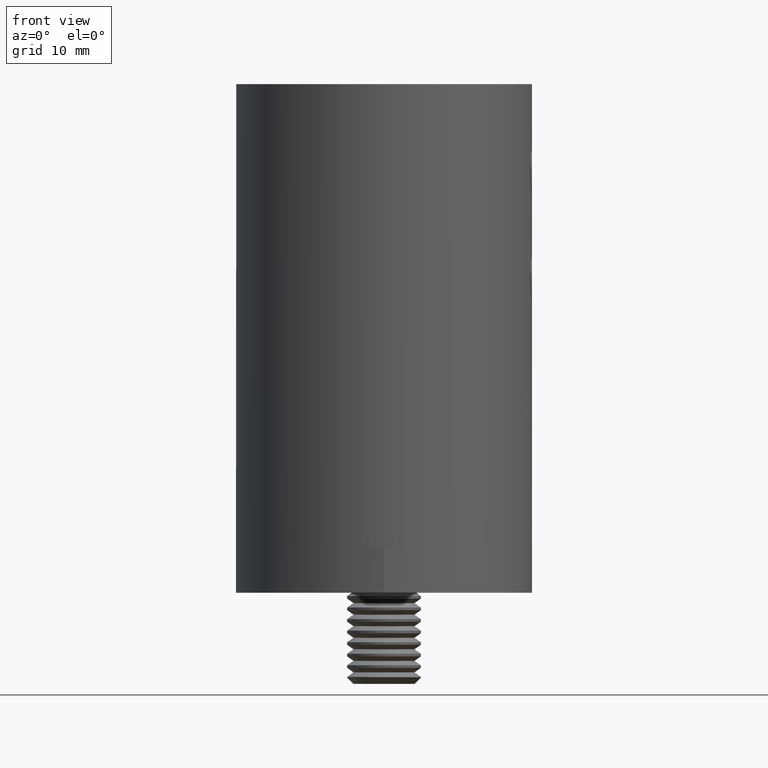
[diagram: clean part render]
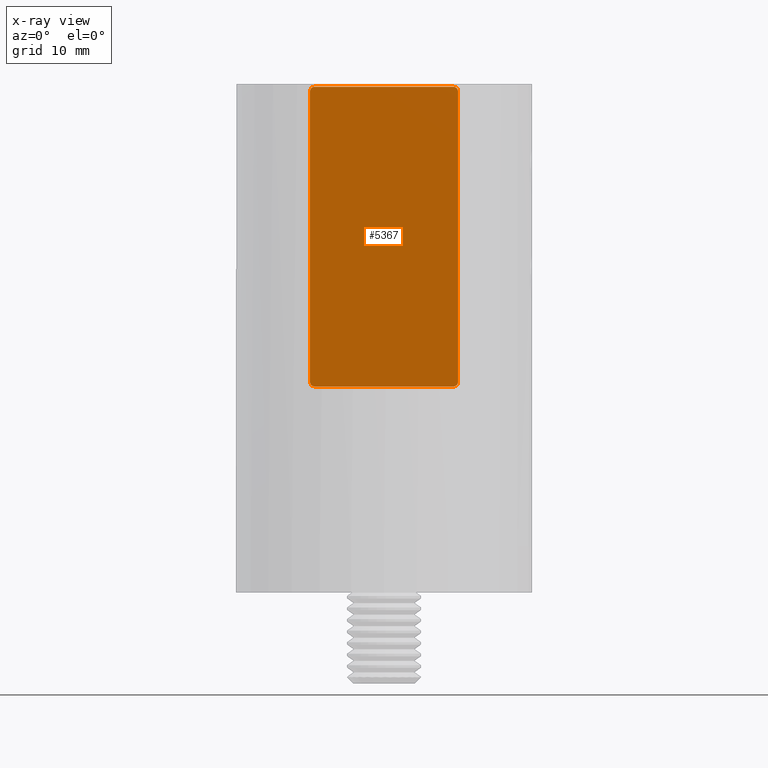
[diagram: x-ray — body ghosted, one internal face saturated and labeled with its STEP entity id]
A machine part, front view, then the same camera in x-ray: the body is ghosted and one INTERNAL B-rep face — a face not visible from any outside direction — is saturated and labeled: STEP entity #5367.
In plain terms, the highlighted planar face has unit normal (0, -1, -0).
Its self-contained STEP definition (entity closure, byte-faithful):
#203 = CARTESIAN_POINT ( 'NONE',  ( -15.69999999999999574, 0.000000000000000000, 8.000000000000000000 ) ) ;
#1023 = DIRECTION ( 'NONE',  ( 0.000000000000000000, 0.000000000000000000, -1.000000000000000000 ) ) ;
#1146 = PLANE ( 'NONE',  #6232 ) ;
#1220 = VERTEX_POINT ( 'NONE', #203 ) ;
#1351 = CARTESIAN_POINT ( 'NONE',  ( -15.69999999999999929, 0.000000000000000000, -7.500000000000000000 ) ) ;
#1356 = ORIENTED_EDGE ( 'NONE', *, *, #17528, .T. ) ;
#2068 = VERTEX_POINT ( 'NONE', #7767 ) ;
#2284 = CARTESIAN_POINT ( 'NONE',  ( -15.69999999999999574, 0.000000000000000000, 8.000000000000000000 ) ) ;
#2358 = DIRECTION ( 'NONE',  ( 0.000000000000000000, 1.000000000000000000, 0.000000000000000000 ) ) ;
#2565 = DIRECTION ( 'NONE',  ( 0.000000000000000000, 0.000000000000000000, 1.000000000000000000 ) ) ;
#3127 = CIRCLE ( 'NONE', #6613, 0.5000000000000004441 ) ;
#3834 = EDGE_CURVE ( 'NONE', #16874, #5336, #3127, .T. ) ;
#3953 = CARTESIAN_POINT ( 'NONE',  ( -16.19999999999999929, 0.000000000000000000, -7.499999999999996447 ) ) ;
#3956 = ORIENTED_EDGE ( 'NONE', *, *, #11158, .F. ) ;
#4096 = LINE ( 'NONE', #18465, #20369 ) ;
#4098 = CARTESIAN_POINT ( 'NONE',  ( 15.69999999999999929, 0.000000000000000000, -7.500000000000000000 ) ) ;
#4452 = DIRECTION ( 'NONE',  ( 0.000000000000000000, -1.000000000000000000, 0.000000000000000000 ) ) ;
#4870 = CIRCLE ( 'NONE', #12466, 0.5000000000000004441 ) ;
#5111 = AXIS2_PLACEMENT_3D ( 'NONE', #13615, #10340, #7436 ) ;
#5336 = VERTEX_POINT ( 'NONE', #15183 ) ;
#5367 = ADVANCED_FACE ( 'NONE', ( #14714 ), #1146, .T. ) ;
#5500 = LINE ( 'NONE', #12010, #9459 ) ;
#6051 = VERTEX_POINT ( 'NONE', #3953 ) ;
#6232 = AXIS2_PLACEMENT_3D ( 'NONE', #1351, #4452, #15506 ) ;
#6613 = AXIS2_PLACEMENT_3D ( 'NONE', #11235, #8302, #9864 ) ;
#6982 = ORIENTED_EDGE ( 'NONE', *, *, #10928, .T. ) ;
#7433 = VECTOR ( 'NONE', #15056, 1000.000000000000000 ) ;
#7436 = DIRECTION ( 'NONE',  ( 0.000000000000000000, 0.000000000000000000, -1.000000000000000000 ) ) ;
#7767 = CARTESIAN_POINT ( 'NONE',  ( -16.19999999999999929, 0.000000000000000000, 7.499999999999996447 ) ) ;
#8302 = DIRECTION ( 'NONE',  ( 0.000000000000000000, 1.000000000000000000, 0.000000000000000000 ) ) ;
#8594 = DIRECTION ( 'NONE',  ( 1.000000000000000000, 0.000000000000000000, 0.000000000000000000 ) ) ;
#8878 = DIRECTION ( 'NONE',  ( 0.000000000000000000, 0.000000000000000000, 1.000000000000000000 ) ) ;
#9218 = ORIENTED_EDGE ( 'NONE', *, *, #12504, .F. ) ;
#9459 = VECTOR ( 'NONE', #11945, 1000.000000000000000 ) ;
#9670 = EDGE_LOOP ( 'NONE', ( #10366, #6982, #9218, #19680, #15814, #14211, #3956, #1356 ) ) ;
#9864 = DIRECTION ( 'NONE',  ( 0.000000000000000000, 0.000000000000000000, 1.000000000000000000 ) ) ;
#10340 = DIRECTION ( 'NONE',  ( -0.000000000000000000, -1.000000000000000000, 0.000000000000000000 ) ) ;
#10366 = ORIENTED_EDGE ( 'NONE', *, *, #19044, .T. ) ;
#10461 = DIRECTION ( 'NONE',  ( 0.000000000000000000, 1.000000000000000000, 0.000000000000000000 ) ) ;
#10628 = LINE ( 'NONE', #2284, #7433 ) ;
#10928 = EDGE_CURVE ( 'NONE', #15070, #11384, #20217, .T. ) ;
#11158 = EDGE_CURVE ( 'NONE', #2068, #1220, #12333, .T. ) ;
#11181 = EDGE_CURVE ( 'NONE', #1220, #16874, #10628, .T. ) ;
#11235 = CARTESIAN_POINT ( 'NONE',  ( 15.69999999999999929, 0.000000000000000000, 7.500000000000000000 ) ) ;
#11310 = CARTESIAN_POINT ( 'NONE',  ( -15.69999999999999574, 0.000000000000000000, -8.000000000000000000 ) ) ;
#11384 = VERTEX_POINT ( 'NONE', #12217 ) ;
#11945 = DIRECTION ( 'NONE',  ( 0.000000000000000000, 0.000000000000000000, -1.000000000000000000 ) ) ;
#12010 = CARTESIAN_POINT ( 'NONE',  ( -16.19999999999999929, 0.000000000000000000, 7.499999999999996447 ) ) ;
#12104 = VECTOR ( 'NONE', #8594, 1000.000000000000000 ) ;
#12217 = CARTESIAN_POINT ( 'NONE',  ( 15.69999999999999574, 0.000000000000000000, -8.000000000000000000 ) ) ;
#12333 = CIRCLE ( 'NONE', #16819, 0.5000000000000004441 ) ;
#12466 = AXIS2_PLACEMENT_3D ( 'NONE', #4098, #10461, #8878 ) ;
#12504 = EDGE_CURVE ( 'NONE', #16259, #11384, #4870, .T. ) ;
#13258 = CARTESIAN_POINT ( 'NONE',  ( -15.69999999999999574, 0.000000000000000000, -8.000000000000000000 ) ) ;
#13289 = CARTESIAN_POINT ( 'NONE',  ( 16.19999999999999929, 0.000000000000000000, -7.499999999999996447 ) ) ;
#13383 = EDGE_CURVE ( 'NONE', #5336, #16259, #4096, .T. ) ;
#13615 = CARTESIAN_POINT ( 'NONE',  ( -15.69999999999999929, 0.000000000000000000, -7.500000000000000000 ) ) ;
#14182 = CARTESIAN_POINT ( 'NONE',  ( 15.69999999999999574, 0.000000000000000000, 8.000000000000000000 ) ) ;
#14211 = ORIENTED_EDGE ( 'NONE', *, *, #11181, .F. ) ;
#14714 = FACE_OUTER_BOUND ( 'NONE', #9670, .T. ) ;
#15056 = DIRECTION ( 'NONE',  ( 1.000000000000000000, 0.000000000000000000, 0.000000000000000000 ) ) ;
#15070 = VERTEX_POINT ( 'NONE', #11310 ) ;
#15183 = CARTESIAN_POINT ( 'NONE',  ( 16.19999999999999929, 0.000000000000000000, 7.499999999999996447 ) ) ;
#15506 = DIRECTION ( 'NONE',  ( 0.000000000000000000, -0.000000000000000000, -1.000000000000000000 ) ) ;
#15814 = ORIENTED_EDGE ( 'NONE', *, *, #3834, .F. ) ;
#16259 = VERTEX_POINT ( 'NONE', #13289 ) ;
#16650 = CARTESIAN_POINT ( 'NONE',  ( -15.69999999999999929, 0.000000000000000000, 7.500000000000000000 ) ) ;
#16819 = AXIS2_PLACEMENT_3D ( 'NONE', #16650, #2358, #2565 ) ;
#16874 = VERTEX_POINT ( 'NONE', #14182 ) ;
#17528 = EDGE_CURVE ( 'NONE', #2068, #6051, #5500, .T. ) ;
#18465 = CARTESIAN_POINT ( 'NONE',  ( 16.19999999999999929, 0.000000000000000000, 7.499999999999996447 ) ) ;
#18635 = CIRCLE ( 'NONE', #5111, 0.5000000000000004441 ) ;
#19044 = EDGE_CURVE ( 'NONE', #6051, #15070, #18635, .T. ) ;
#19680 = ORIENTED_EDGE ( 'NONE', *, *, #13383, .F. ) ;
#20217 = LINE ( 'NONE', #13258, #12104 ) ;
#20369 = VECTOR ( 'NONE', #1023, 1000.000000000000000 ) ;